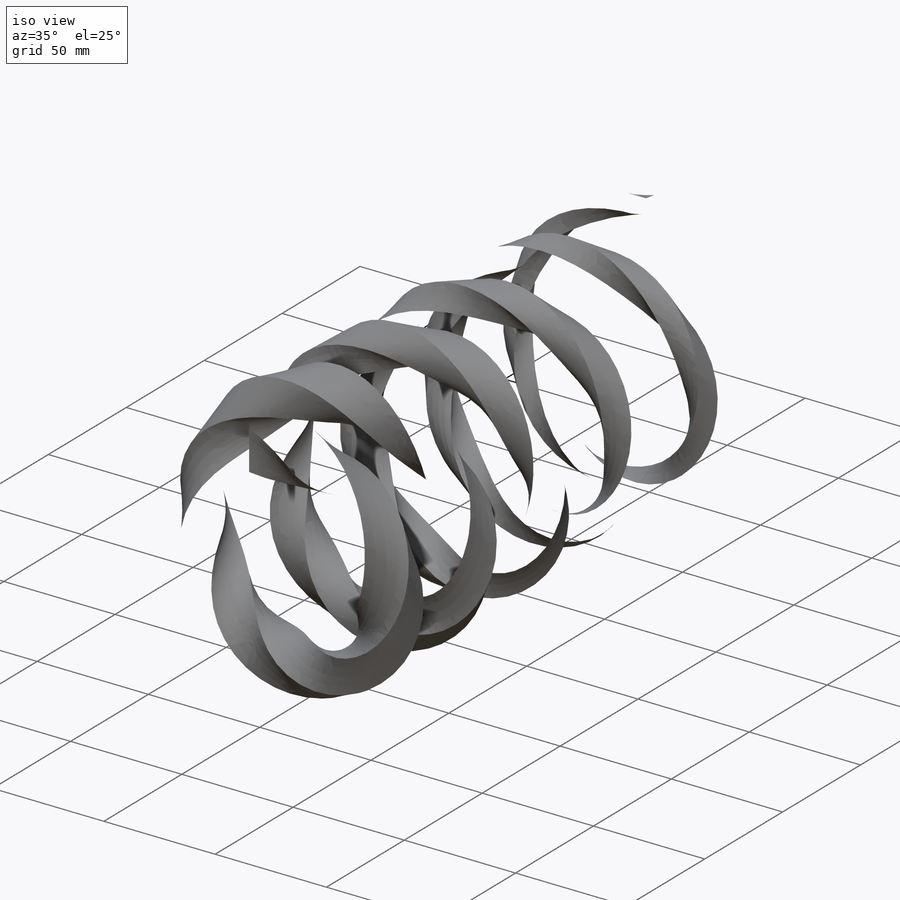
[diagram: iso view]
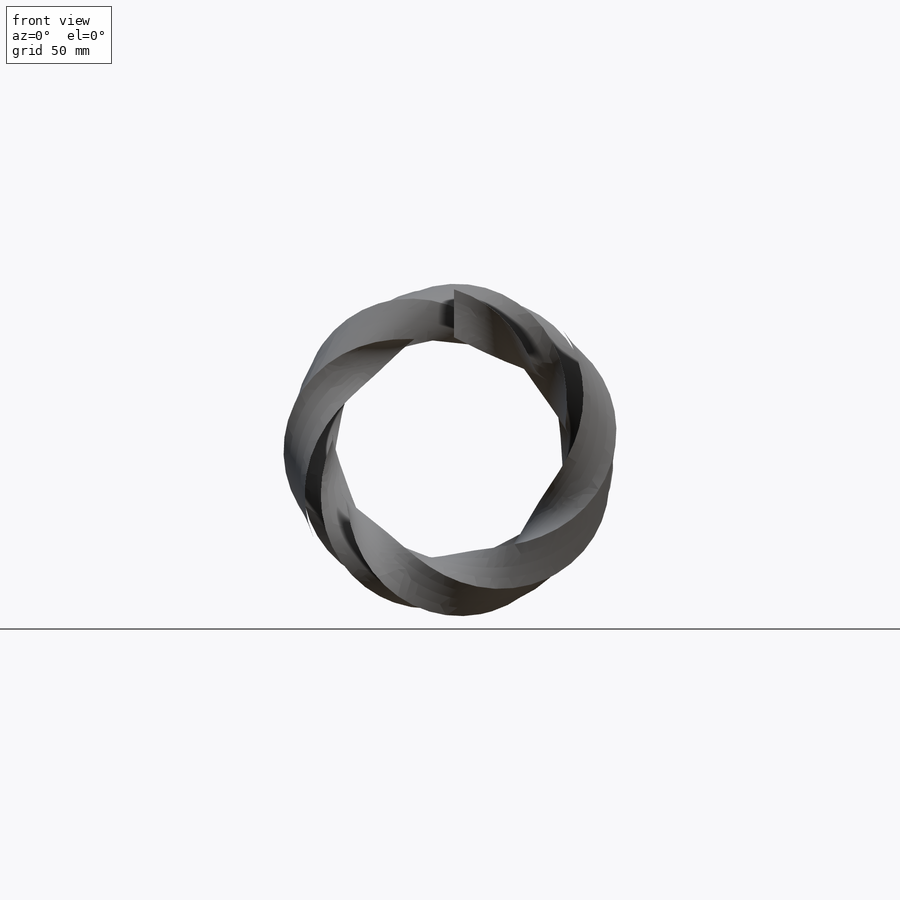
[diagram: front view]
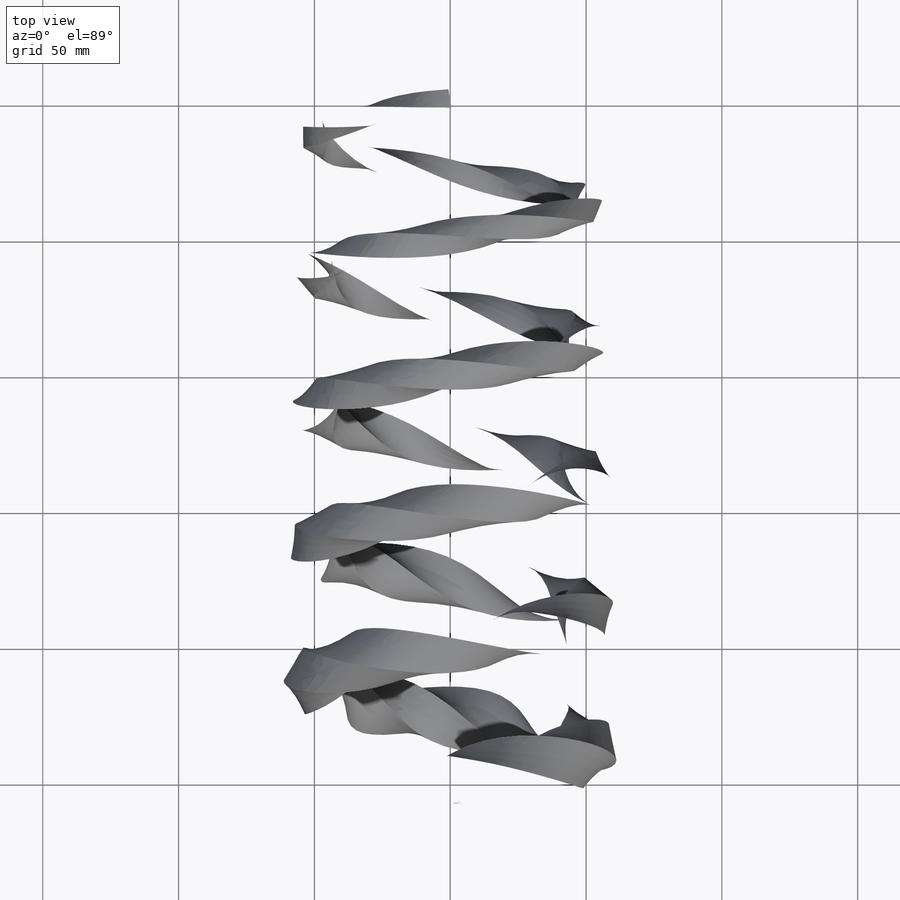
[diagram: top view]
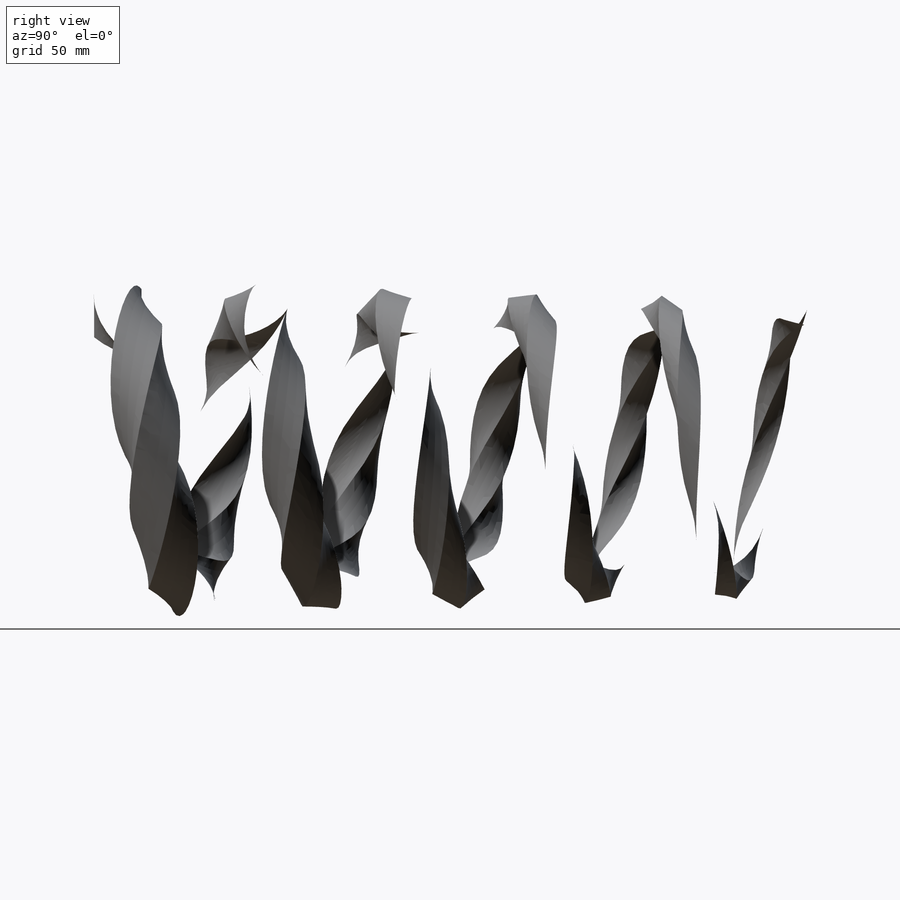
[diagram: right view]
SOLIDWORKS PART (.sldprt)
format: sldprt  version: not decoded by parser v0  size: 2,849,792 bytes
history: native  units: mm
features: sketch x9, plane x5, material x1, helix x1, delete_body x1 (+10 scaffold rows collapsed)
feature tree (27):
  scaffold x10  (default folders/planes/origin — collapsed)
  material  "Niedriglegierter Stahlguss"
  plane  "Ebene vorne"
  plane  "Ebene oben"
  plane  "Ebene rechts"
  sketch  "Skizze1"  dims[D1=100.0mm]
  helix  "Spirale/Helix1"  Pitch=250mm
  plane  "Ebene1"
  plane  "Ebene2"
  sketch  "Skizze4"  dims[D1=25.0mm]
  sketch  "Skizze5"  dims[D1=10.0mm]
  sketch  "Skizze6"  dims[D1=20.0mm]
  sketch  "3D-Skizze1"  dims[D1=3600.0deg]
  sketch  "3D-Skizze2<5>"
  sketch  "3D-Skizze2<6>"
  sketch  "3D-Skizze2<7>"
  sketch  "Oberflächenausfüllung2"
  delete_body  "Körper-Löschen1"
decode coverage: 6 of 11 modeling features carry decoded parameters
note: suppression state not decoded; provenance and decode notes live in map.json
